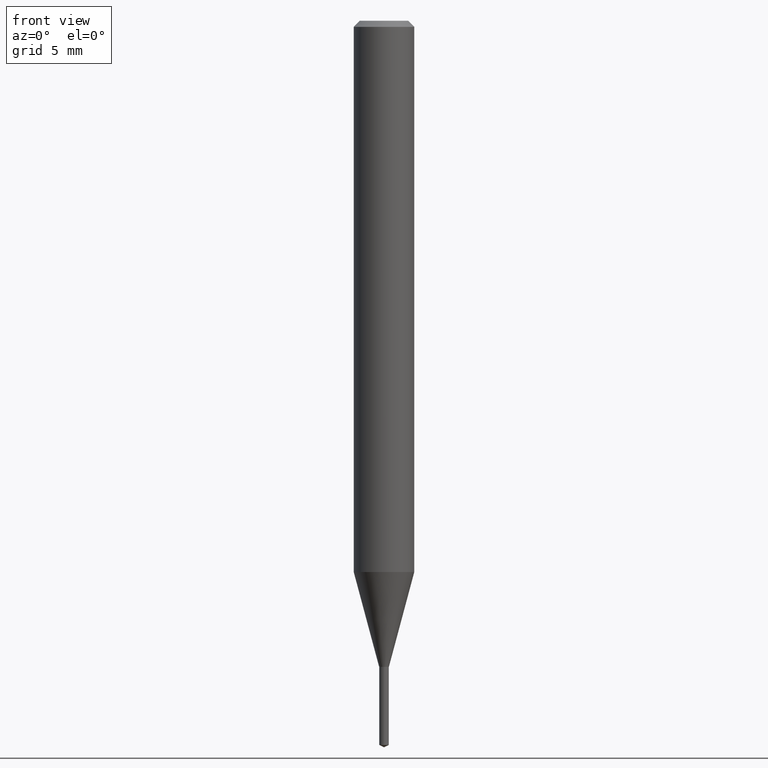
[diagram: clean part render]
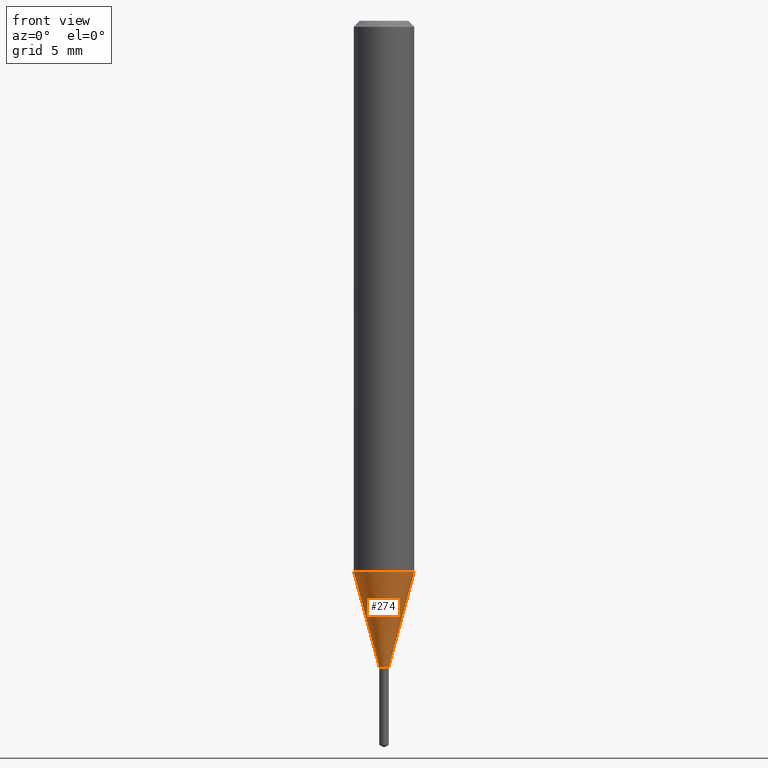
[diagram: same view with one face highlighted and labeled with its STEP entity id]
A machine part, front view. The second image highlights one B-rep face of the part: STEP entity #274.
In plain terms, the highlighted conical surface has half-angle 15 deg.
Its self-contained STEP definition (entity closure, byte-faithful):
#14 = EDGE_CURVE ( 'NONE', #72, #416, #101, .T. ) ;
#18 = VECTOR ( 'NONE', #228, 39.37007874015748854 ) ;
#19 = DIRECTION ( 'NONE',  ( -2.445468806185136597E-29, 3.491481338843145583E-15, 1.000000000000000000 ) ) ;
#28 = CARTESIAN_POINT ( 'NONE',  ( -0.01000000000000000021, -4.587280128708514635E-15, -1.334200000000000275 ) ) ;
#47 = CARTESIAN_POINT ( 'NONE',  ( 0.06250000000000013878, -4.410674317752272148E-15, -1.138267332602639570 ) ) ;
#52 = AXIS2_PLACEMENT_3D ( 'NONE', #179, #304, #445 ) ;
#72 = VERTEX_POINT ( 'NONE', #327 ) ;
#84 = AXIS2_PLACEMENT_3D ( 'NONE', #124, #281, #282 ) ;
#85 = CONICAL_SURFACE ( 'NONE', #52, 0.01000000000000000021, 0.2617993877991570129 ) ;
#101 = CIRCLE ( 'NONE', #84, 0.06250000000000013878 ) ;
#124 = CARTESIAN_POINT ( 'NONE',  ( 2.783597254979316381E-29, -3.974239150396879690E-15, -1.138267332602639570 ) ) ;
#149 = ORIENTED_EDGE ( 'NONE', *, *, #14, .F. ) ;
#159 = ORIENTED_EDGE ( 'NONE', *, *, #252, .F. ) ;
#179 = CARTESIAN_POINT ( 'NONE',  ( 3.262744481212209726E-29, -4.658334402284525505E-15, -1.334200000000000275 ) ) ;
#189 = VERTEX_POINT ( 'NONE', #435 ) ;
#194 = EDGE_CURVE ( 'NONE', #489, #189, #374, .T. ) ;
#223 = LINE ( 'NONE', #28, #18 ) ;
#224 = VECTOR ( 'NONE', #280, 39.37007874015748854 ) ;
#228 = DIRECTION ( 'NONE',  ( -0.2588190451025280114, 5.211531920934590485E-15, 0.9659258262890662028 ) ) ;
#252 = EDGE_CURVE ( 'NONE', #489, #72, #223, .T. ) ;
#271 = ORIENTED_EDGE ( 'NONE', *, *, #194, .T. ) ;
#274 = ADVANCED_FACE ( 'NONE', ( #332 ), #85, .T. ) ;
#280 = DIRECTION ( 'NONE',  ( 0.2588190451025280114, 1.565188264969568522E-15, 0.9659258262890662028 ) ) ;
#281 = DIRECTION ( 'NONE',  ( -2.445468806185136597E-29, 3.491481338843145583E-15, 1.000000000000000000 ) ) ;
#282 = DIRECTION ( 'NONE',  ( 1.000000000000000000, -6.982962677686262766E-15, 0.000000000000000000 ) ) ;
#304 = DIRECTION ( 'NONE',  ( -2.445468806185136597E-29, 3.491481338843145583E-15, 1.000000000000000000 ) ) ;
#327 = CARTESIAN_POINT ( 'NONE',  ( -0.06250000000000013878, -3.530149940546815891E-15, -1.138267332602639570 ) ) ;
#332 = FACE_OUTER_BOUND ( 'NONE', #357, .T. ) ;
#348 = LINE ( 'NONE', #388, #224 ) ;
#356 = CARTESIAN_POINT ( 'NONE',  ( -0.01000000000000000021, -4.334671453843213207E-15, -1.334200000000000275 ) ) ;
#357 = EDGE_LOOP ( 'NONE', ( #159, #271, #480, #149 ) ) ;
#360 = CARTESIAN_POINT ( 'NONE',  ( 3.262744481212209726E-29, -4.658334402284525505E-15, -1.334200000000000275 ) ) ;
#374 = CIRCLE ( 'NONE', #490, 0.01000000000000000021 ) ;
#388 = CARTESIAN_POINT ( 'NONE',  ( 0.01000000000000000021, -4.728164029061387226E-15, -1.334200000000000275 ) ) ;
#416 = VERTEX_POINT ( 'NONE', #47 ) ;
#435 = CARTESIAN_POINT ( 'NONE',  ( 0.01000000000000000021, -4.728164029061387226E-15, -1.334200000000000275 ) ) ;
#439 = DIRECTION ( 'NONE',  ( 1.000000000000000000, -6.982962677686235945E-15, 0.000000000000000000 ) ) ;
#445 = DIRECTION ( 'NONE',  ( 1.000000000000000000, -6.982962677686235945E-15, 0.000000000000000000 ) ) ;
#461 = EDGE_CURVE ( 'NONE', #189, #416, #348, .T. ) ;
#480 = ORIENTED_EDGE ( 'NONE', *, *, #461, .T. ) ;
#489 = VERTEX_POINT ( 'NONE', #356 ) ;
#490 = AXIS2_PLACEMENT_3D ( 'NONE', #360, #19, #439 ) ;